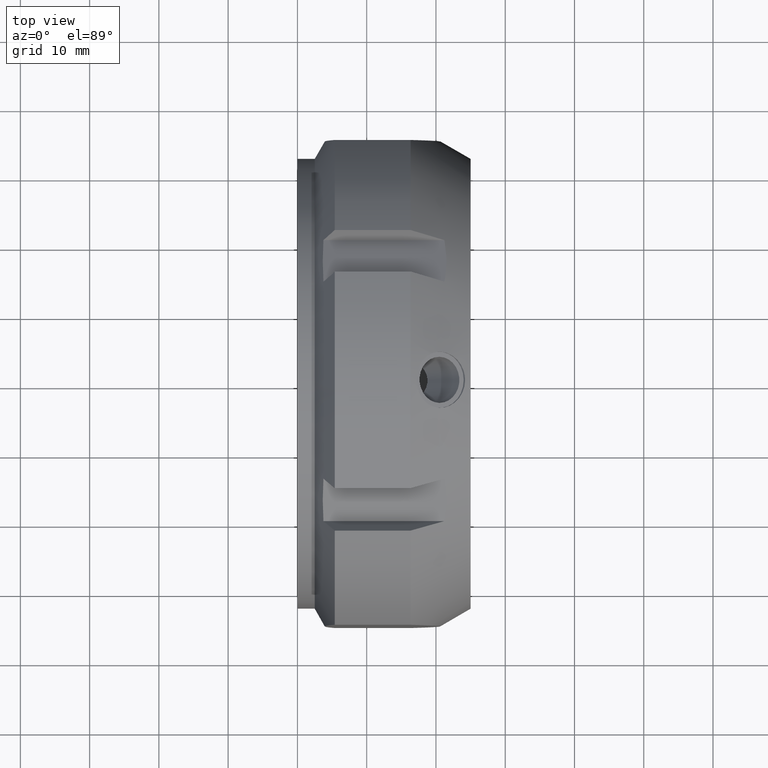
[diagram: clean part render]
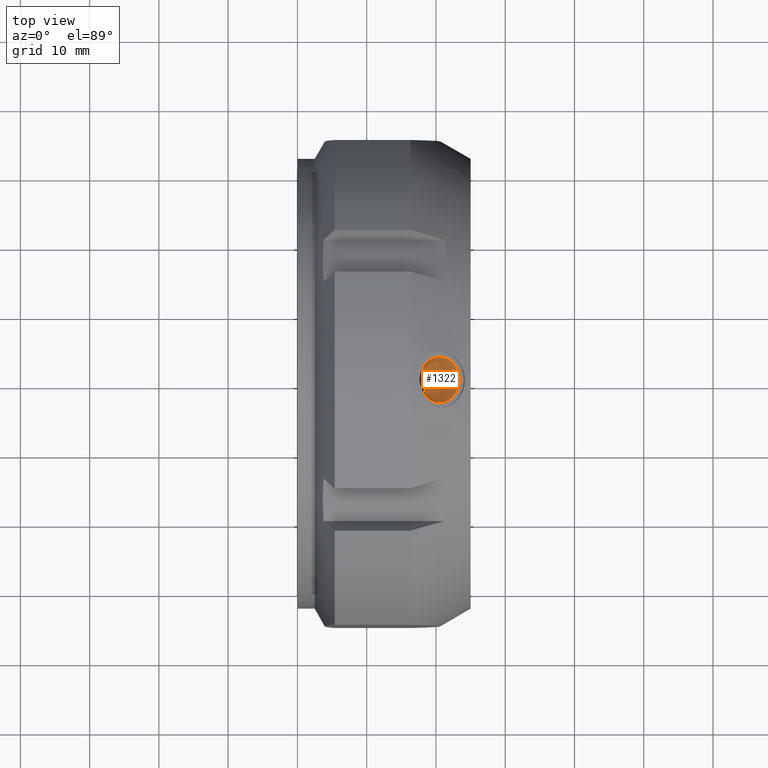
[diagram: same view with one face highlighted and labeled with its STEP entity id]
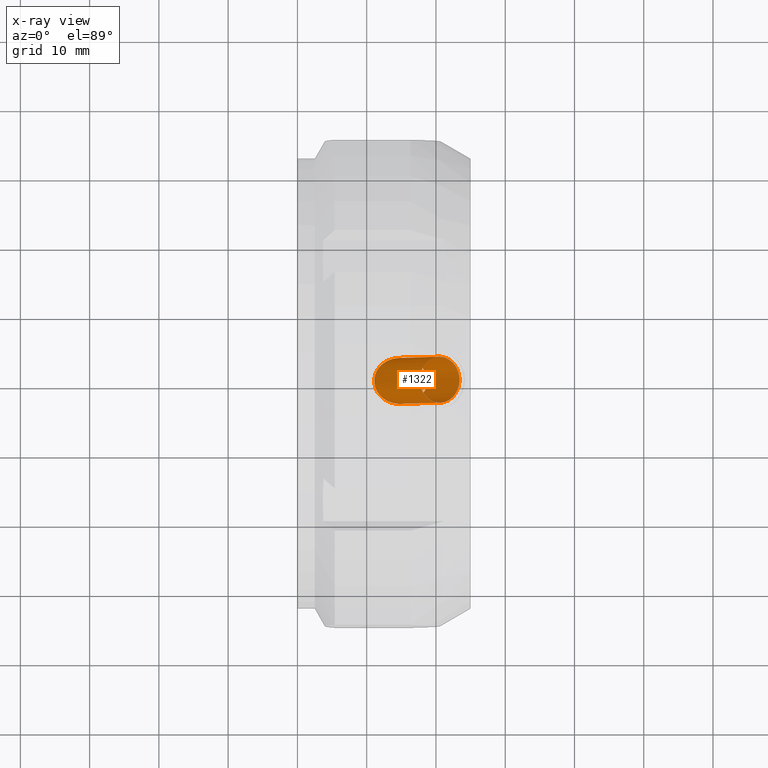
[diagram: x-ray of the same camera — body ghosted, the highlighted face saturated]
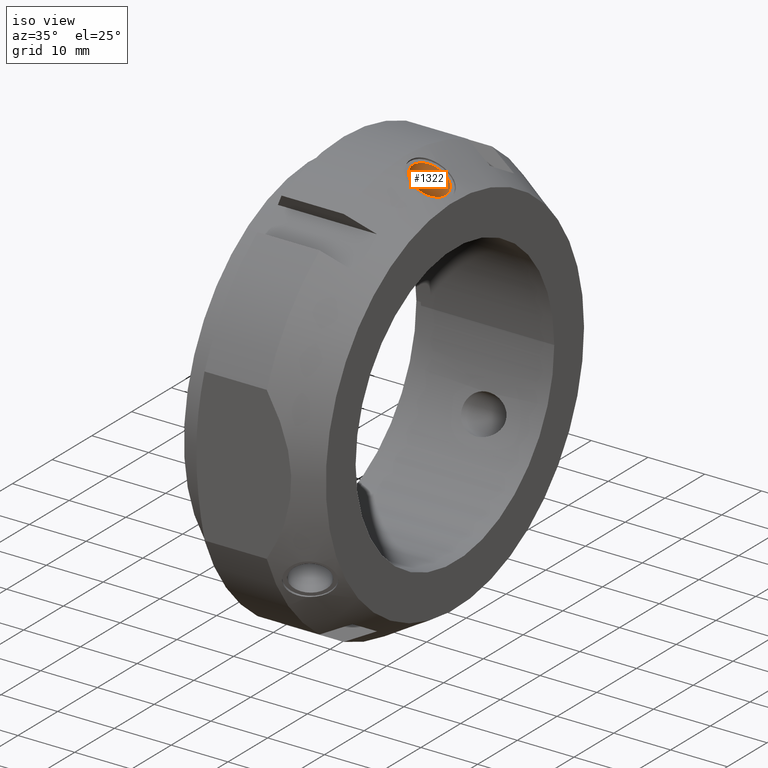
[diagram: same view with one face highlighted and labeled with its STEP entity id]
A machine part, top view. The second image highlights one B-rep face of the part: STEP entity #1322.
The next image is the same camera in x-ray: the body ghosted, the highlighted face saturated — about 0% of this face is hidden behind the body in this view.
A second angle (iso view) of the same face is appended — the face is thin or edge-on in the first view.
In plain terms, the highlighted cylindrical surface (bore or boss wall) has radius 3.3235 mm, axis along (0.5, 0, 0.866).
Its self-contained STEP definition (entity closure, byte-faithful):
#1265=CARTESIAN_POINT('',(16.750000000000011,0.0,28.145825622994245));
#1266=DIRECTION('',(0.500000000000001,0.0,0.866025403784438));
#1267=DIRECTION('',(0.0,1.0,0.0));
#1268=AXIS2_PLACEMENT_3D('',#1265,#1266,#1267);
#1269=CYLINDRICAL_SURFACE('',#1268,3.3235);
#1270=CARTESIAN_POINT('',(14.805643964883245,-3.3235,24.778102182168837));
#1271=VERTEX_POINT('',#1270);
#1272=CARTESIAN_POINT('',(14.805643964883245,-3.3235,24.778102182168837));
#1273=CARTESIAN_POINT('',(15.30489469103931,-3.3235,24.778102182168837));
#1274=CARTESIAN_POINT('',(15.840720372908329,-3.234876736337236,24.790502471609305));
#1275=CARTESIAN_POINT('',(16.841654194211412,-2.871880719411326,24.835171462118378));
#1276=CARTESIAN_POINT('',(17.306852910766167,-2.597689665424685,24.866885126893685));
#1277=CARTESIAN_POINT('',(17.991635466897616,-1.991733838842404,24.922071388832467));
#1278=CARTESIAN_POINT('',(18.278090712051632,-1.640086129083254,24.949256770632164));
#1279=CARTESIAN_POINT('',(18.66853138670723,-0.852913194613704,24.988554098207967));
#1280=CARTESIAN_POINT('',(18.771403969044105,-0.416803386032571,25.0));
#1281=CARTESIAN_POINT('',(18.771403969044105,0.416803386032571,25.0));
#1282=CARTESIAN_POINT('',(18.668531386707226,0.852913194613704,24.988554098207967));
#1283=CARTESIAN_POINT('',(18.278090712051632,1.640086129083253,24.949256770632164));
#1284=CARTESIAN_POINT('',(17.991635466897616,1.991733838842403,24.922071388832467));
#1285=CARTESIAN_POINT('',(17.306852910766167,2.597689665424684,24.866885126893685));
#1286=CARTESIAN_POINT('',(16.841654194211412,2.871880719411326,24.835171462118378));
#1287=CARTESIAN_POINT('',(15.840720372908329,3.234876736337236,24.790502471609305));
#1288=CARTESIAN_POINT('',(15.30489469103931,3.3235,24.778102182168837));
#1289=CARTESIAN_POINT('',(14.344676228961802,3.3235,24.778102182168837));
#1290=CARTESIAN_POINT('',(13.847951361394017,3.247287448176204,24.788768783006489));
#1291=CARTESIAN_POINT('',(12.923843426496678,2.915570250379409,24.829969461605845));
#1292=CARTESIAN_POINT('',(12.496645575067916,2.659497656817957,24.86008189187201));
#1293=CARTESIAN_POINT('',(11.841531154354712,2.064040114330854,24.916305515399895));
#1294=CARTESIAN_POINT('',(11.562516103231692,1.696031452018203,24.945773199388181));
#1295=CARTESIAN_POINT('',(11.189854737733322,0.877061723783869,24.987974822452124));
#1296=CARTESIAN_POINT('',(11.096109490437211,0.426109309759358,25.0));
#1297=CARTESIAN_POINT('',(11.096109490437211,-0.413474325835868,25.0));
#1298=CARTESIAN_POINT('',(11.184435699478744,-0.852092730627676,24.988689257424134));
#1299=CARTESIAN_POINT('',(11.537350820708481,-1.652716815852756,24.948530620497191));
#1300=CARTESIAN_POINT('',(11.802001932250249,-2.014726899246023,24.920319665172048));
#1301=CARTESIAN_POINT('',(12.443835895402104,-2.62443230801287,24.864014447581475));
#1302=CARTESIAN_POINT('',(12.878147793072204,-2.893812395900488,24.832575593998808));
#1303=CARTESIAN_POINT('',(13.82235574579761,-3.243065958674456,24.78938248970795));
#1304=CARTESIAN_POINT('',(14.332065981515941,-3.3235,24.778102182168837));
#1305=CARTESIAN_POINT('',(14.805643964883249,-3.3235,24.778102182168837));
#1306=B_SPLINE_CURVE_WITH_KNOTS('',3,(#1272,#1273,#1274,#1275,#1276,#1277,#1278,#1279,#1280,#1281,#1282,#1283,#1284,#1285,#1286,#1287,#1288,#1289,#1290,#1291,#1292,#1293,#1294,#1295,#1296,#1297,#1298,#1299,#1300,#1301,#1302,#1303,#1304,#1305),.UNSPECIFIED.,.T.,.U.,(4,2,2,2,2,2,2,2,2,2,2,2,2,2,2,2,4),(0.0,0.14977521784682,0.299550435693639,0.42459145150341,0.549632467313182,0.674673483122953,0.799714498932724,0.949489716779544,1.099264934626363,1.237555255402797,1.375845576179231,1.503678369107038,1.631511162034846,1.755553459785606,1.879595757536366,2.021669152546559,2.163742547556752),.UNSPECIFIED.);
#1307=EDGE_CURVE('',#1271,#1271,#1306,.T.);
#1308=ORIENTED_EDGE('',*,*,#1307,.F.);
#1309=EDGE_LOOP('',(#1308));
#1310=FACE_OUTER_BOUND('',#1309,.T.);
#1311=CARTESIAN_POINT('',(20.500000000000014,3.3235,34.641016151377535));
#1312=VERTEX_POINT('',#1311);
#1313=CARTESIAN_POINT('',(20.500000000000021,0.0,34.641016151377535));
#1314=DIRECTION('',(-0.500000000000001,0.0,-0.866025403784438));
#1315=DIRECTION('',(0.0,1.0,0.0));
#1316=AXIS2_PLACEMENT_3D('',#1313,#1314,#1315);
#1317=CIRCLE('',#1316,3.3235);
#1318=EDGE_CURVE('',#1312,#1312,#1317,.T.);
#1319=ORIENTED_EDGE('',*,*,#1318,.F.);
#1320=EDGE_LOOP('',(#1319));
#1321=FACE_BOUND('',#1320,.T.);
#1322=ADVANCED_FACE('',(#1310,#1321),#1269,.F.);